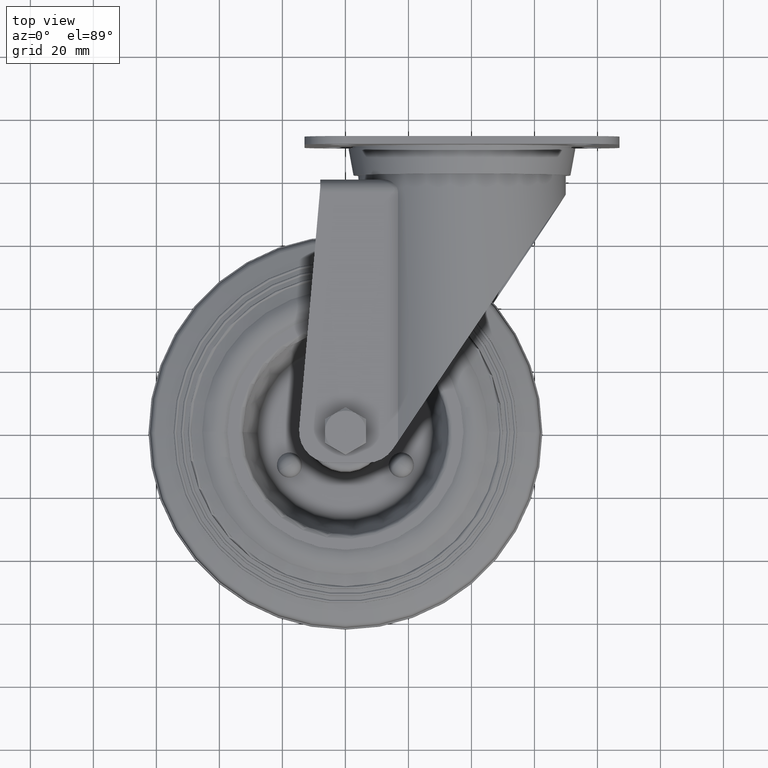
[diagram: clean part render]
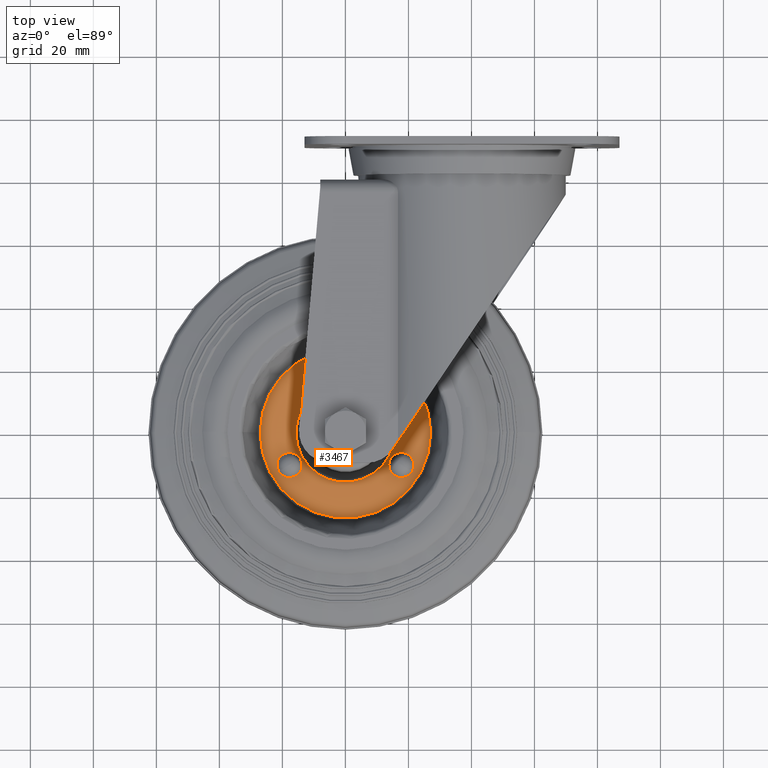
[diagram: same view with one face highlighted and labeled with its STEP entity id]
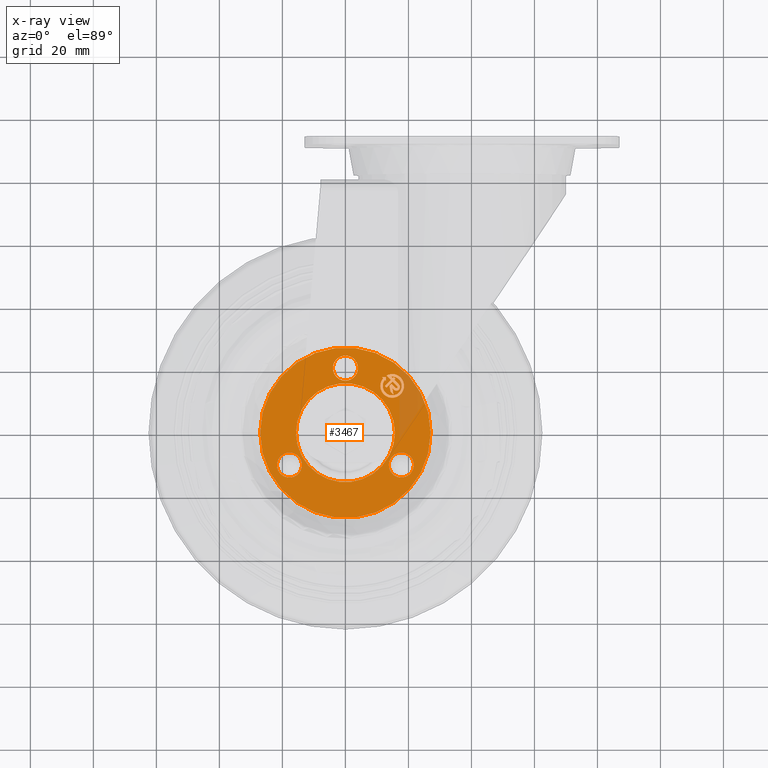
[diagram: x-ray of the same camera — body ghosted, the highlighted face saturated]
A machine part, top view. The second image highlights one B-rep face of the part: STEP entity #3467.
The next image is the same camera in x-ray: the body ghosted, the highlighted face saturated — about 7% of this face is hidden behind the body in this view.
In plain terms, the highlighted planar face has unit normal (0, 0, 1).
Its self-contained STEP definition (entity closure, byte-faithful):
#215=FACE_BOUND('',#702,.T.);
#216=FACE_BOUND('',#703,.T.);
#217=FACE_BOUND('',#704,.T.);
#218=FACE_BOUND('',#705,.T.);
#219=FACE_BOUND('',#706,.T.);
#267=CIRCLE('',#3861,27.0499809046163);
#268=CIRCLE('',#3862,3.97994974842648);
#269=CIRCLE('',#3863,3.97994974842648);
#270=CIRCLE('',#3864,3.97994974842648);
#271=CIRCLE('',#3865,15.7000000447035);
#272=CIRCLE('',#3866,3.76499999999578);
#273=CIRCLE('',#3867,3.0119999999983);
#274=CIRCLE('',#3868,1.12950034557046);
#275=CIRCLE('',#3869,0.376500115178529);
#486=FACE_OUTER_BOUND('',#701,.T.);
#701=EDGE_LOOP('',(#2246));
#702=EDGE_LOOP('',(#2247));
#703=EDGE_LOOP('',(#2248));
#704=EDGE_LOOP('',(#2249));
#705=EDGE_LOOP('',(#2250));
#706=EDGE_LOOP('',(#2251,#2252,#2253,#2254,#2255,#2256,#2257,#2258,#2259,
#2260,#2261,#2262,#2263,#2264,#2265,#2266,#2267,#2268,#2269,#2270,#2271,
#2272,#2273,#2274));
#961=LINE('',#5441,#1184);
#984=LINE('',#5495,#1207);
#986=LINE('',#5511,#1209);
#987=LINE('',#5513,#1210);
#988=LINE('',#5517,#1211);
#989=LINE('',#5519,#1212);
#990=LINE('',#5521,#1213);
#991=LINE('',#5523,#1214);
#992=LINE('',#5525,#1215);
#993=LINE('',#5529,#1216);
#994=LINE('',#5531,#1217);
#995=LINE('',#5533,#1218);
#996=LINE('',#5535,#1219);
#997=LINE('',#5537,#1220);
#998=LINE('',#5539,#1221);
#999=LINE('',#5543,#1222);
#1000=LINE('',#5545,#1223);
#1001=LINE('',#5547,#1224);
#1002=LINE('',#5549,#1225);
#1003=LINE('',#5550,#1226);
#1184=VECTOR('',#4311,1000.);
#1207=VECTOR('',#4346,1000.);
#1209=VECTOR('',#4362,1000.);
#1210=VECTOR('',#4363,1000.);
#1211=VECTOR('',#4366,1000.);
#1212=VECTOR('',#4367,1000.);
#1213=VECTOR('',#4368,1000.);
#1214=VECTOR('',#4369,1000.);
#1215=VECTOR('',#4370,1000.);
#1216=VECTOR('',#4373,1000.);
#1217=VECTOR('',#4374,999.999999999999);
#1218=VECTOR('',#4375,1000.);
#1219=VECTOR('',#4376,1000.);
#1220=VECTOR('',#4377,1000.);
#1221=VECTOR('',#4378,1000.);
#1222=VECTOR('',#4381,1000.);
#1223=VECTOR('',#4382,1000.);
#1224=VECTOR('',#4383,1000.);
#1225=VECTOR('',#4384,1000.);
#1226=VECTOR('',#4385,1000.);
#1407=VERTEX_POINT('',#5439);
#1408=VERTEX_POINT('',#5440);
#1433=VERTEX_POINT('',#5494);
#1434=VERTEX_POINT('',#5498);
#1435=VERTEX_POINT('',#5500);
#1436=VERTEX_POINT('',#5502);
#1437=VERTEX_POINT('',#5504);
#1438=VERTEX_POINT('',#5506);
#1439=VERTEX_POINT('',#5508);
#1440=VERTEX_POINT('',#5509);
#1441=VERTEX_POINT('',#5512);
#1442=VERTEX_POINT('',#5514);
#1443=VERTEX_POINT('',#5516);
#1444=VERTEX_POINT('',#5518);
#1445=VERTEX_POINT('',#5520);
#1446=VERTEX_POINT('',#5522);
#1447=VERTEX_POINT('',#5524);
#1448=VERTEX_POINT('',#5526);
#1449=VERTEX_POINT('',#5528);
#1450=VERTEX_POINT('',#5530);
#1451=VERTEX_POINT('',#5532);
#1452=VERTEX_POINT('',#5534);
#1453=VERTEX_POINT('',#5536);
#1454=VERTEX_POINT('',#5538);
#1455=VERTEX_POINT('',#5540);
#1456=VERTEX_POINT('',#5542);
#1457=VERTEX_POINT('',#5544);
#1458=VERTEX_POINT('',#5546);
#1459=VERTEX_POINT('',#5548);
#1723=EDGE_CURVE('',#1407,#1408,#961,.T.);
#1750=EDGE_CURVE('',#1408,#1433,#984,.T.);
#1752=EDGE_CURVE('',#1434,#1434,#267,.T.);
#1753=EDGE_CURVE('',#1435,#1435,#268,.T.);
#1754=EDGE_CURVE('',#1436,#1436,#269,.T.);
#1755=EDGE_CURVE('',#1437,#1437,#270,.T.);
#1756=EDGE_CURVE('',#1438,#1438,#271,.T.);
#1757=EDGE_CURVE('',#1439,#1440,#272,.F.);
#1758=EDGE_CURVE('',#1440,#1407,#986,.T.);
#1759=EDGE_CURVE('',#1433,#1441,#987,.T.);
#1760=EDGE_CURVE('',#1442,#1441,#273,.F.);
#1761=EDGE_CURVE('',#1442,#1443,#988,.T.);
#1762=EDGE_CURVE('',#1443,#1444,#989,.T.);
#1763=EDGE_CURVE('',#1444,#1445,#990,.T.);
#1764=EDGE_CURVE('',#1445,#1446,#991,.T.);
#1765=EDGE_CURVE('',#1446,#1447,#992,.T.);
#1766=EDGE_CURVE('',#1447,#1448,#274,.F.);
#1767=EDGE_CURVE('',#1448,#1449,#993,.T.);
#1768=EDGE_CURVE('',#1449,#1450,#994,.T.);
#1769=EDGE_CURVE('',#1450,#1451,#995,.T.);
#1770=EDGE_CURVE('',#1451,#1452,#996,.T.);
#1771=EDGE_CURVE('',#1452,#1453,#997,.T.);
#1772=EDGE_CURVE('',#1453,#1454,#998,.T.);
#1773=EDGE_CURVE('',#1455,#1454,#275,.F.);
#1774=EDGE_CURVE('',#1455,#1456,#999,.T.);
#1775=EDGE_CURVE('',#1456,#1457,#1000,.T.);
#1776=EDGE_CURVE('',#1457,#1458,#1001,.T.);
#1777=EDGE_CURVE('',#1458,#1459,#1002,.T.);
#1778=EDGE_CURVE('',#1459,#1439,#1003,.T.);
#2246=ORIENTED_EDGE('',*,*,#1752,.T.);
#2247=ORIENTED_EDGE('',*,*,#1753,.F.);
#2248=ORIENTED_EDGE('',*,*,#1754,.F.);
#2249=ORIENTED_EDGE('',*,*,#1755,.F.);
#2250=ORIENTED_EDGE('',*,*,#1756,.F.);
#2251=ORIENTED_EDGE('',*,*,#1757,.T.);
#2252=ORIENTED_EDGE('',*,*,#1758,.T.);
#2253=ORIENTED_EDGE('',*,*,#1723,.T.);
#2254=ORIENTED_EDGE('',*,*,#1750,.T.);
#2255=ORIENTED_EDGE('',*,*,#1759,.T.);
#2256=ORIENTED_EDGE('',*,*,#1760,.F.);
#2257=ORIENTED_EDGE('',*,*,#1761,.T.);
#2258=ORIENTED_EDGE('',*,*,#1762,.T.);
#2259=ORIENTED_EDGE('',*,*,#1763,.T.);
#2260=ORIENTED_EDGE('',*,*,#1764,.T.);
#2261=ORIENTED_EDGE('',*,*,#1765,.T.);
#2262=ORIENTED_EDGE('',*,*,#1766,.T.);
#2263=ORIENTED_EDGE('',*,*,#1767,.T.);
#2264=ORIENTED_EDGE('',*,*,#1768,.T.);
#2265=ORIENTED_EDGE('',*,*,#1769,.T.);
#2266=ORIENTED_EDGE('',*,*,#1770,.T.);
#2267=ORIENTED_EDGE('',*,*,#1771,.T.);
#2268=ORIENTED_EDGE('',*,*,#1772,.T.);
#2269=ORIENTED_EDGE('',*,*,#1773,.F.);
#2270=ORIENTED_EDGE('',*,*,#1774,.T.);
#2271=ORIENTED_EDGE('',*,*,#1775,.T.);
#2272=ORIENTED_EDGE('',*,*,#1776,.T.);
#2273=ORIENTED_EDGE('',*,*,#1777,.T.);
#2274=ORIENTED_EDGE('',*,*,#1778,.T.);
#3199=PLANE('',#3860);
#3467=ADVANCED_FACE('',(#486,#215,#216,#217,#218,#219),#3199,.T.);
#3860=AXIS2_PLACEMENT_3D('',#5497,#4348,#4349);
#3861=AXIS2_PLACEMENT_3D('',#5499,#4350,#4351);
#3862=AXIS2_PLACEMENT_3D('',#5501,#4352,#4353);
#3863=AXIS2_PLACEMENT_3D('',#5503,#4354,#4355);
#3864=AXIS2_PLACEMENT_3D('',#5505,#4356,#4357);
#3865=AXIS2_PLACEMENT_3D('',#5507,#4358,#4359);
#3866=AXIS2_PLACEMENT_3D('',#5510,#4360,#4361);
#3867=AXIS2_PLACEMENT_3D('',#5515,#4364,#4365);
#3868=AXIS2_PLACEMENT_3D('',#5527,#4371,#4372);
#3869=AXIS2_PLACEMENT_3D('',#5541,#4379,#4380);
#4311=DIRECTION('',(0.,0.0177098575739596,-0.999843168174244));
#4346=DIRECTION('',(0.,-0.999843155269362,-0.0177105861282715));
#4348=DIRECTION('center_axis',(1.,0.,0.));
#4349=DIRECTION('ref_axis',(0.,0.,-1.));
#4350=DIRECTION('center_axis',(1.,0.,0.));
#4351=DIRECTION('ref_axis',(0.,0.,-1.));
#4352=DIRECTION('center_axis',(1.,0.,0.));
#4353=DIRECTION('ref_axis',(0.,0.,-1.));
#4354=DIRECTION('center_axis',(1.,0.,0.));
#4355=DIRECTION('ref_axis',(0.,0.,-1.));
#4356=DIRECTION('center_axis',(1.,0.,0.));
#4357=DIRECTION('ref_axis',(0.,0.,-1.));
#4358=DIRECTION('center_axis',(1.,0.,0.));
#4359=DIRECTION('ref_axis',(0.,0.,-1.));
#4360=DIRECTION('center_axis',(1.,0.,0.));
#4361=DIRECTION('ref_axis',(0.,0.,-1.));
#4362=DIRECTION('',(0.,0.694473181273728,0.71951858939957));
#4363=DIRECTION('',(0.,0.694472581487422,0.719519168307694));
#4364=DIRECTION('center_axis',(1.,0.,0.));
#4365=DIRECTION('ref_axis',(0.,0.,-1.));
#4366=DIRECTION('',(0.,-0.706924327297498,-0.707289188009389));
#4367=DIRECTION('',(0.,0.707289187880831,-0.706924327426122));
#4368=DIRECTION('',(0.,-0.706924945823428,-0.70728856980199));
#4369=DIRECTION('',(0.,-0.707290218535631,0.706923296237873));
#4370=DIRECTION('',(0.,-0.706924106321173,-0.707289408871652));
#4371=DIRECTION('center_axis',(1.,0.,0.));
#4372=DIRECTION('ref_axis',(0.,0.,-1.));
#4373=DIRECTION('',(0.,0.706924896414337,0.707288619185675));
#4374=DIRECTION('',(0.,-0.984738649336167,-0.174039629118148));
#4375=DIRECTION('',(0.,0.706924121180234,0.707289394020265));
#4376=DIRECTION('',(0.,0.984738669792495,0.174039513373566));
#4377=DIRECTION('',(0.,0.707289188146751,-0.706924327160065));
#4378=DIRECTION('',(0.,-0.706924327320789,-0.70728918798611));
#4379=DIRECTION('center_axis',(1.,0.,0.));
#4380=DIRECTION('ref_axis',(0.,0.,-1.));
#4381=DIRECTION('',(0.,0.706924327289948,0.707289188016935));
#4382=DIRECTION('',(0.,-0.707289188039619,0.706924327267252));
#4383=DIRECTION('',(0.,0.7069243272975,0.707289188009387));
#4384=DIRECTION('',(0.,0.707289188039638,-0.706924327267233));
#4385=DIRECTION('',(0.,0.706924327229989,0.707289188076863));
#5439=CARTESIAN_POINT('',(23.2,17.648095265,-11.600760743));
#5440=CARTESIAN_POINT('',(23.2,17.6707264036,-12.8784440458001));
#5441=CARTESIAN_POINT('',(23.2,17.4420686664901,0.0308566272687895));
#5494=CARTESIAN_POINT('',(23.2,16.3930431008,-12.9010761156999));
#5495=CARTESIAN_POINT('',(23.2,15.9286671661969,-12.909301775837));
#5497=CARTESIAN_POINT('Origin',(23.2,15.7,0.));
#5498=CARTESIAN_POINT('',(23.2,-3.31266725318354E-15,27.0499809046163));
#5499=CARTESIAN_POINT('Origin',(23.2,0.,0.));
#5500=CARTESIAN_POINT('',(23.2,24.4799497484265,4.8740327201778E-16));
#5501=CARTESIAN_POINT('Origin',(23.2,20.5,0.));
#5502=CARTESIAN_POINT('',(23.2,-12.2399748742132,-21.2002583655038));
#5503=CARTESIAN_POINT('Origin',(23.2,-10.25,-17.753520777581));
#5504=CARTESIAN_POINT('',(23.2,-12.2399748742132,21.2002583655038));
#5505=CARTESIAN_POINT('Origin',(23.2,-10.25,17.753520777581));
#5506=CARTESIAN_POINT('',(23.2,-1.92269548013594E-15,15.7000000447035));
#5507=CARTESIAN_POINT('Origin',(23.2,0.,0.));
#5508=CARTESIAN_POINT('',(23.2,18.1499739026109,-13.0380558932486));
#5509=CARTESIAN_POINT('',(23.2,17.2842838466319,-11.9776926182836));
#5510=CARTESIAN_POINT('Origin',(23.2,14.8492424049,-14.8492424048999));
#5511=CARTESIAN_POINT('',(23.2,22.5052845089029,-6.5684023345588));
#5512=CARTESIAN_POINT('',(23.2,16.7599884053029,-12.5208966999124));
#5513=CARTESIAN_POINT('',(23.2,22.5052852743415,-6.56839211573198));
#5514=CARTESIAN_POINT('',(23.2,17.8308601900159,-14.4225113614188));
#5515=CARTESIAN_POINT('Origin',(23.2,14.8492424049,-14.8492424048999));
#5516=CARTESIAN_POINT('',(23.2,17.2985456884001,-14.9551006034));
#5517=CARTESIAN_POINT('',(23.2,23.9772345680177,-8.27296469121463));
#5518=CARTESIAN_POINT('',(23.2,17.6180992276,-15.2744892984999));
#5519=CARTESIAN_POINT('',(23.2,9.02131112067166,-6.68213590946556));
#5520=CARTESIAN_POINT('',(23.2,17.0857850462,-15.8070772886));
#5521=CARTESIAN_POINT('',(23.2,24.296786436774,-8.59236674469857));
#5522=CARTESIAN_POINT('',(23.2,16.7662315071,-15.4876895248999));
#5523=CARTESIAN_POINT('',(23.2,8.48899539645411,-7.21474741184257));
#5524=CARTESIAN_POINT('',(23.2,15.2757533482683,-16.9789378873051));
#5525=CARTESIAN_POINT('',(23.2,23.9772348986389,-8.27295985226963));
#5526=CARTESIAN_POINT('',(23.2,13.6779869767411,-15.3819949501305));
#5527=CARTESIAN_POINT('Origin',(23.2,14.4768699608218,-16.1804666205046));
#5528=CARTESIAN_POINT('',(23.2,14.1793843359,-14.880339615));
#5529=CARTESIAN_POINT('',(23.2,22.3794699027542,-6.67603498914437));
#5530=CARTESIAN_POINT('',(23.2,12.1105248109,-15.2459833771));
#5531=CARTESIAN_POINT('',(23.2,18.2041862851953,-14.1690087060308));
#5532=CARTESIAN_POINT('',(23.2,13.0387702957,-14.3172582611001));
#5533=CARTESIAN_POINT('',(23.2,21.527325962512,-5.82431649577586));
#5534=CARTESIAN_POINT('',(23.2,14.8490229622,-13.9973200858));
#5535=CARTESIAN_POINT('',(23.2,18.073132967944,-13.4275013575675));
#5536=CARTESIAN_POINT('',(23.2,15.4881291092,-14.6360965445999));
#5537=CARTESIAN_POINT('',(23.2,8.27607191827681,-7.42775975312126));
#5538=CARTESIAN_POINT('',(23.2,14.210575255813,-15.9143097742892));
#5539=CARTESIAN_POINT('',(23.2,22.912057190973,-7.20833679480451));
#5540=CARTESIAN_POINT('',(23.2,14.7431641773072,-16.4466239555951));
#5541=CARTESIAN_POINT('Origin',(23.2,14.4768697979768,-16.1804667834834));
#5542=CARTESIAN_POINT('',(23.2,16.2336435169,-14.9553753436001));
#5543=CARTESIAN_POINT('',(23.2,23.4446461124135,-7.74065097540492));
#5544=CARTESIAN_POINT('',(23.2,14.3163241446,-13.0390450358));
#5545=CARTESIAN_POINT('',(23.2,8.4889974044696,-7.21472436867509));
#5546=CARTESIAN_POINT('',(23.2,14.8486383259,-12.5064561142999));
#5547=CARTESIAN_POINT('',(23.2,21.5273267401899,-5.82432066768251));
#5548=CARTESIAN_POINT('',(23.2,16.7659576982,-14.4227864220999));
#5549=CARTESIAN_POINT('',(23.2,9.02131158574684,-6.68213544715256));
#5550=CARTESIAN_POINT('',(23.2,23.4446461125089,-7.74065097418785));